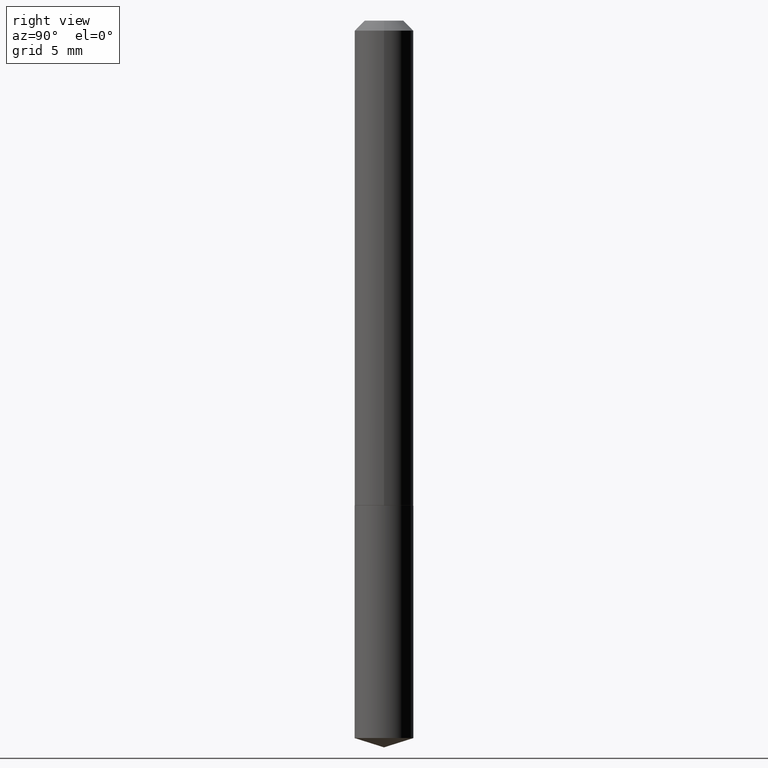
[diagram: clean part render]
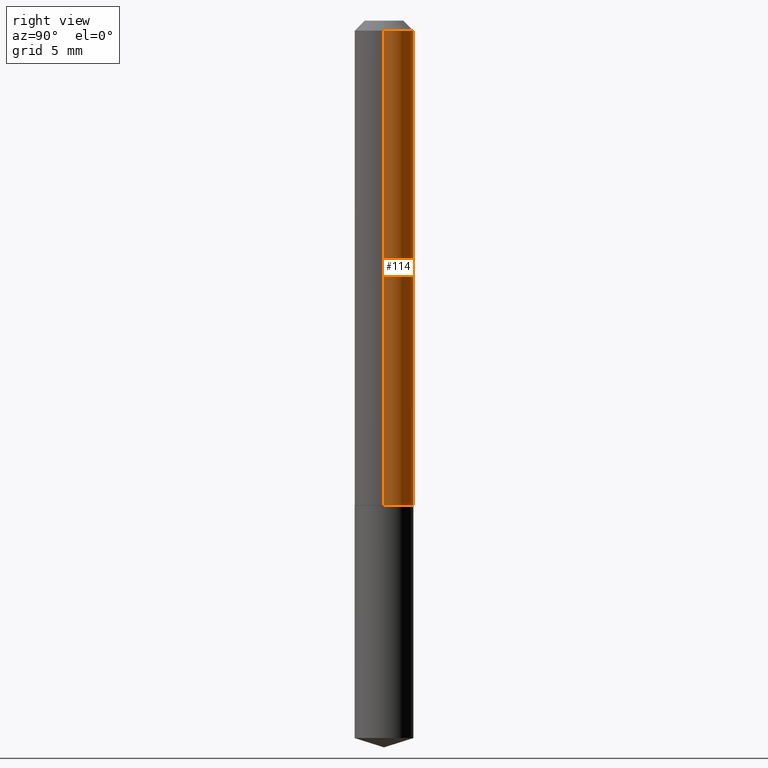
[diagram: same view with one face highlighted and labeled with its STEP entity id]
A machine part, right view. The second image highlights one B-rep face of the part: STEP entity #114.
In plain terms, the highlighted cylindrical surface (edge-blend (fillet) strip) has radius 2.3495 mm, axis along (-0, 0, 1).
Its self-contained STEP definition (entity closure, byte-faithful):
#24 = CIRCLE ( 'NONE', #299, 0.09249999999999999889 ) ;
#33 = ORIENTED_EDGE ( 'NONE', *, *, #74, .T. ) ;
#37 = VERTEX_POINT ( 'NONE', #234 ) ;
#54 = DIRECTION ( 'NONE',  ( -2.445468806185136597E-29, 3.491481338843145583E-15, 1.000000000000000000 ) ) ;
#74 = EDGE_CURVE ( 'NONE', #379, #316, #291, .T. ) ;
#80 = CARTESIAN_POINT ( 'NONE',  ( -0.09250000000000008216, 6.572520305780932557E-16, -4.550014958485792374E-30 ) ) ;
#81 = CARTESIAN_POINT ( 'NONE',  ( -0.09249999999999999889, -2.056239978937328693E-15, -0.03125000000000020123 ) ) ;
#96 = CARTESIAN_POINT ( 'NONE',  ( 3.724693538700582458E-29, -5.317875227191995586E-15, -1.523100000000000120 ) ) ;
#99 = LINE ( 'NONE', #158, #111 ) ;
#104 = ORIENTED_EDGE ( 'NONE', *, *, #168, .T. ) ;
#111 = VECTOR ( 'NONE', #149, 39.37007874015748143 ) ;
#114 = ADVANCED_FACE ( 'NONE', ( #193 ), #200, .T. ) ;
#136 = ORIENTED_EDGE ( 'NONE', *, *, #273, .F. ) ;
#149 = DIRECTION ( 'NONE',  ( -2.445468806185136877E-29, 3.491481338843145188E-15, 1.000000000000000000 ) ) ;
#158 = CARTESIAN_POINT ( 'NONE',  ( 0.09250000000000008216, -6.459240476859802821E-16, 4.510463517611244952E-30 ) ) ;
#161 = DIRECTION ( 'NONE',  ( 1.000000000000000000, -6.982962677686267499E-15, 4.876176775795936353E-29 ) ) ;
#164 = VECTOR ( 'NONE', #222, 39.37007874015748143 ) ;
#168 = EDGE_CURVE ( 'NONE', #319, #379, #207, .T. ) ;
#193 = FACE_OUTER_BOUND ( 'NONE', #296, .T. ) ;
#200 = CYLINDRICAL_SURFACE ( 'NONE', #230, 0.09250000000000008216 ) ;
#207 = CIRCLE ( 'NONE', #250, 0.09250000000000017930 ) ;
#212 = DIRECTION ( 'NONE',  ( -2.445468806185136597E-29, 3.491481338843145583E-15, 1.000000000000000000 ) ) ;
#222 = DIRECTION ( 'NONE',  ( -2.445468806185136877E-29, 3.491481338843145188E-15, 1.000000000000000000 ) ) ;
#229 = EDGE_CURVE ( 'NONE', #319, #37, #99, .T. ) ;
#230 = AXIS2_PLACEMENT_3D ( 'NONE', #333, #54, #161 ) ;
#232 = CARTESIAN_POINT ( 'NONE',  ( 7.642090019328600035E-31, -1.091087918388489897E-16, -0.03125000000000020123 ) ) ;
#234 = CARTESIAN_POINT ( 'NONE',  ( 0.09249999999999999889, -7.550328395248286925E-16, -0.03125000000000020123 ) ) ;
#236 = CARTESIAN_POINT ( 'NONE',  ( 0.09250000000000017930, -5.963799274877977150E-15, -1.523100000000000120 ) ) ;
#250 = AXIS2_PLACEMENT_3D ( 'NONE', #96, #212, #320 ) ;
#271 = DIRECTION ( 'NONE',  ( 1.000000000000000000, -6.982962677686266711E-15, 0.000000000000000000 ) ) ;
#272 = CARTESIAN_POINT ( 'NONE',  ( -0.09250000000000017930, -4.660623196613901936E-15, -1.523100000000000120 ) ) ;
#273 = EDGE_CURVE ( 'NONE', #37, #316, #24, .T. ) ;
#291 = LINE ( 'NONE', #80, #164 ) ;
#296 = EDGE_LOOP ( 'NONE', ( #104, #33, #136, #370 ) ) ;
#299 = AXIS2_PLACEMENT_3D ( 'NONE', #232, #304, #271 ) ;
#304 = DIRECTION ( 'NONE',  ( -2.445468806185136597E-29, 3.491481338843145583E-15, 1.000000000000000000 ) ) ;
#316 = VERTEX_POINT ( 'NONE', #81 ) ;
#319 = VERTEX_POINT ( 'NONE', #236 ) ;
#320 = DIRECTION ( 'NONE',  ( 1.000000000000000000, -6.982962677686272233E-15, 0.000000000000000000 ) ) ;
#333 = CARTESIAN_POINT ( 'NONE',  ( 0.000000000000000000, 0.000000000000000000, 0.000000000000000000 ) ) ;
#370 = ORIENTED_EDGE ( 'NONE', *, *, #229, .F. ) ;
#379 = VERTEX_POINT ( 'NONE', #272 ) ;